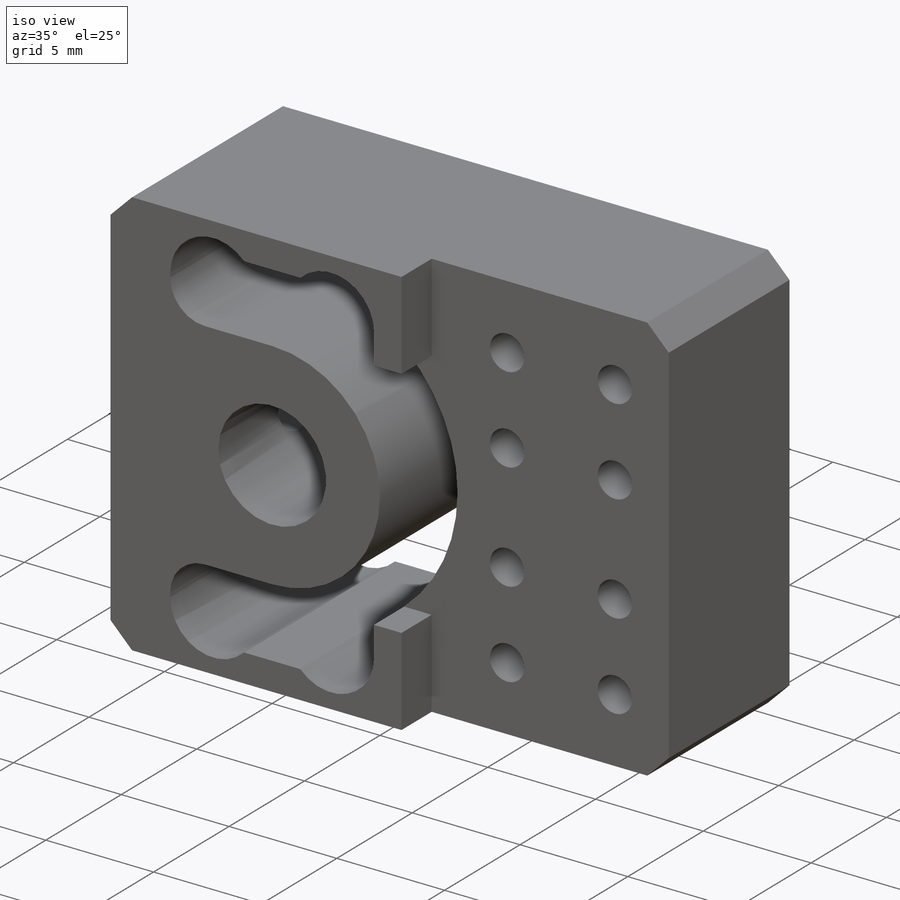
[diagram: iso view]
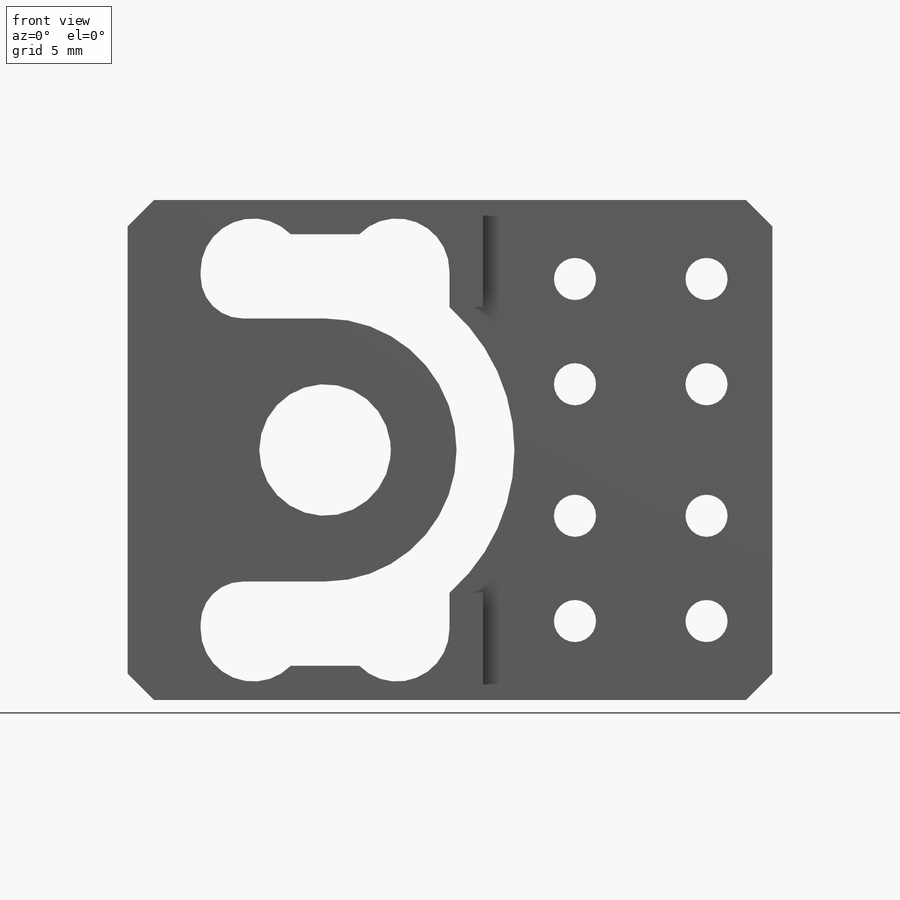
[diagram: front view]
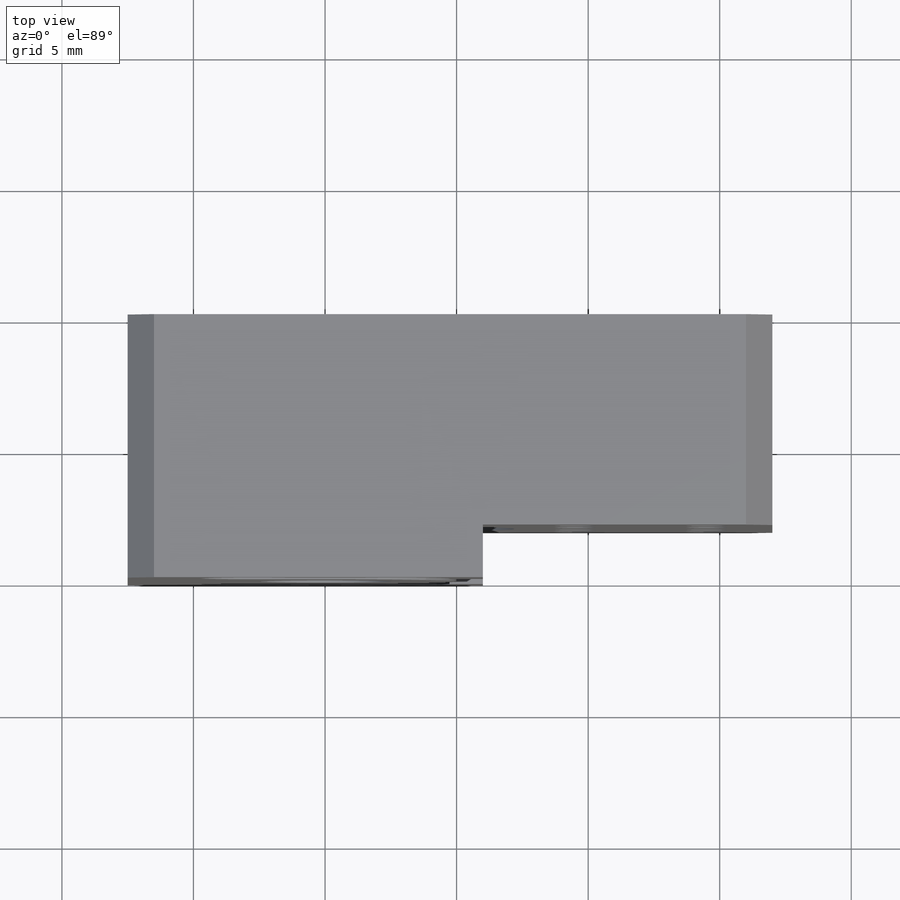
[diagram: top view]
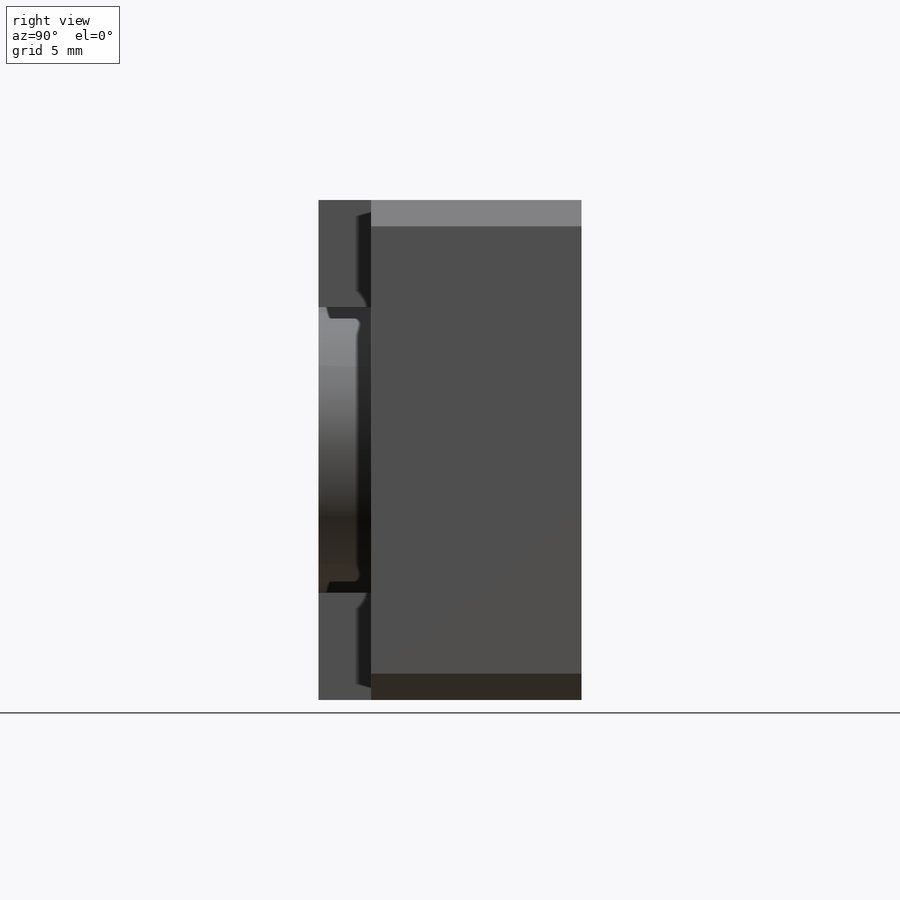
[diagram: right view]
SOLIDWORKS PART (.sldprt)
format: sldprt  version: not decoded by parser v0  size: 720,896 bytes
history: native  units: mm
features: sketch x23, cut_extrude x10, thread x9, extrude x4, mirror x4, fillet x2, hole x2, material x1, chamfer x1 (+12 scaffold rows collapsed)
feature tree (68):
  scaffold x12  (default folders/planes/origin — collapsed)
  material  "6061 Alloy"
  sketch  "Sketch1"  dims[D1=19.0mm D2=15.0mm]
  extrude  "Boss-Extrude1"  Depth=5mm
  sketch  "Sketch2"  dims[c1.D2=5.7mm c1.D1=4.0mm c1.D3=4.0mm c2.D1=0.65mm c2.D2=5.46mm c2.D3=0.7mm c3.D1=2.7mm]
  cut_extrude  "Cut-Extrude1"  Depth=6mm
  mirror  "Mirror3"
  sketch  "Sketch5"
  cut_extrude  "Cut-Extrude4"  Depth=17mm
  sketch  "Sketch6"
  cut_extrude  "Cut-Extrude5"  Depth=17mm
  sketch  "Sketch10"  dims[D1=9.5mm]
  cut_extrude  "Cut-Extrude6"  [1 undecoded]
  sketch  "Sketch7"  dims[c1.D1=~3.315712mm c1.D2=7.0mm c2.D1=10.0mm c2.D2=5.0mm c3.D1=1.5mm]
  extrude  "Boss-Extrude2"  [1 undecoded]
  sketch  "Sketch8"
  extrude  "Boss-Extrude3"  [1 undecoded]
  mirror  "Mirror7"
  fillet  "Fillet1"  Radius=1.6mm
  sketch  "Sketch11"  dims[D1=17.0mm]
  extrude  "Boss-Extrude4"  [1 undecoded]
  chamfer  "Chamfer1"  Distance=1mm Angle=45deg
  sketch  "Sketch16"  dims[D1=3.2mm]
  cut_extrude  "Cut-Extrude8"  Depth=11.5mm
  mirror  "Mirror8"
  sketch  "Sketch17"  dims[D1=1.1mm D2=1.5mm D3=1.1mm]
  cut_extrude  "Cut-Extrude9"  Depth=11.5mm
  sketch  "Sketch18"  dims[D1=4.8mm D2=1.5mm]
  sketch  "Sketch18<2>"
  sketch  "Sketch19"
  sketch  "Sketch19<3>"
  hole  "Trou taraudé M21"  Diameter=1.6mm Depth=10mm
  sketch  "Sketch23"  dims[c1.D1=5.0mm c1.D2=2.5mm c1.D3=5.0mm c2.D2=12.0mm c2.D1=3.0mm c2.D4=5.0mm]
  sketch  "Sketch22"  dims[hole-wizard template sketch: 59 standard entries collapsed; hole parameters kept: c18.Diamètre du trou pour taraudage jusqu'au prochain=1.6mm c18.Profondeur du trou pour taraudage jusqu'au prochain=10.0mm]
  thread  "Filetage de perçage2"  Diameter=2mm  [1 undecoded]
  thread  "Filetage de perçage3"  Diameter=2mm  [1 undecoded]
  thread  "Filetage de perçage4"  Diameter=2mm  [1 undecoded]
  thread  "Filetage de perçage5"  Diameter=2mm  [1 undecoded]
  thread  "Filetage de perçage6"  Diameter=2mm  [1 undecoded]
  thread  "Filetage de perçage7"  Diameter=2mm  [1 undecoded]
  thread  "Filetage de perçage8"  Diameter=2mm  [1 undecoded]
  thread  "Filetage de perçage9"  Diameter=2mm  [1 undecoded]
  sketch  "Sketch24"  dims[D1=11.0mm]
  cut_extrude  "Cut-Extrude10"  Depth=2mm
  sketch  "Sketch25"  dims[D1=4.0mm]
  cut_extrude  "Cut-Extrude11"  [1 undecoded]
  sketch  "Sketch26"  dims[D1=8.0mm]
  hole  "Trou taraudé M2.51"  Diameter=2.05mm Depth=8.25mm
  sketch  "Sketch31"
  sketch  "Sketch30"  dims[hole-wizard template sketch: 46 standard entries collapsed; hole parameters kept: c15.Diamètre du trou pour taraudage=2.05mm c15.Profondeur du trou pour taraudage=8.25mm c15.D3=~14.816244mm c15.Angle de pointe=118.0deg]
  thread  "Filetage de perçage1"  Diameter=5.219786mm  [1 undecoded]
  sketch  "Sketch32"  dims[D1=2.0mm]
  cut_extrude  "Cut-Extrude12"  Depth=10mm
  mirror  "Mirror9"
  sketch  "Sketch33"
  cut_extrude  "Cut-Extrude13"  Depth=10mm
  fillet  "Fillet2"  Radius=2mm
decode coverage: 38 of 55 modeling features carry decoded parameters
note: ~ marks probable driven/reference dimensions
note: 14 parameter values undecoded
summary: no parameter record found for 5 features
note: suppression state not decoded; provenance and decode notes live in map.json
